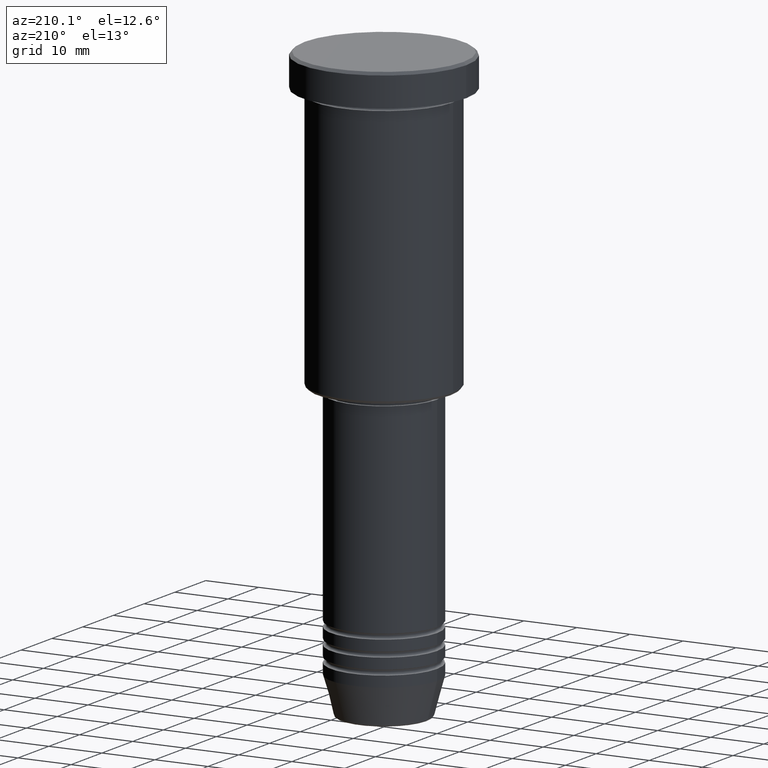
[diagram: clean part render]
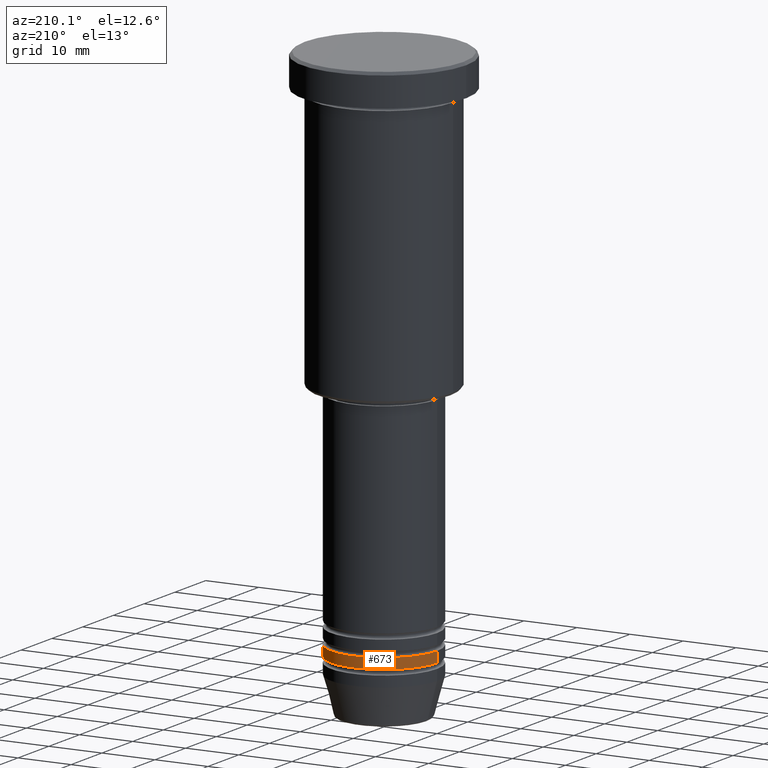
[diagram: same view with one face highlighted and labeled with its STEP entity id]
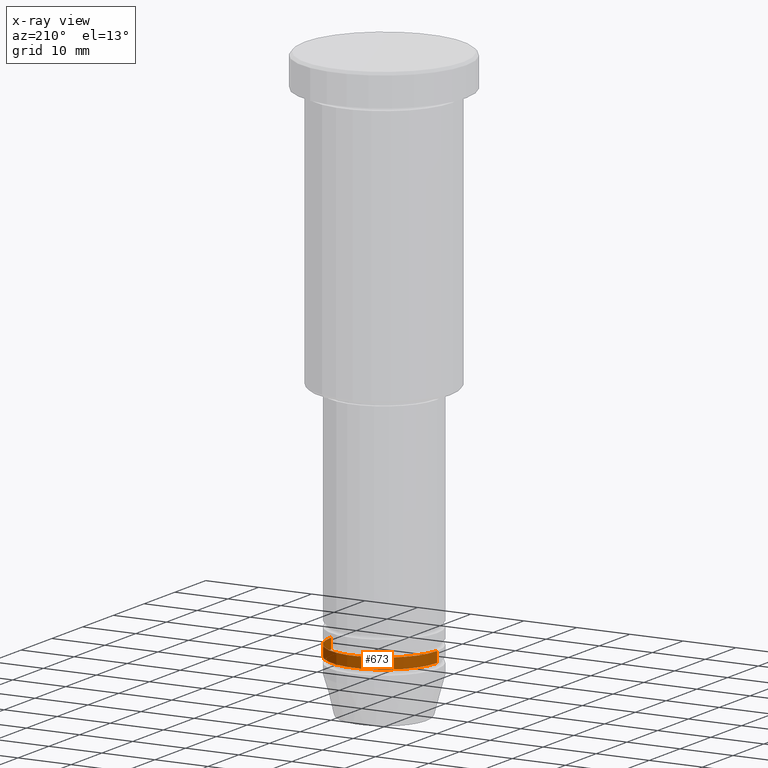
[diagram: x-ray of the same camera — body ghosted, the highlighted face saturated]
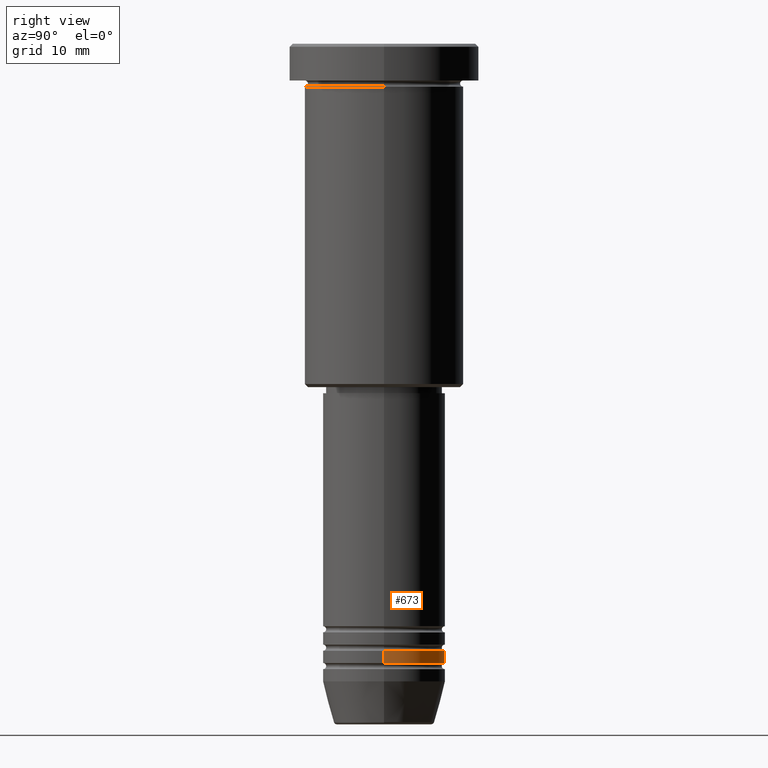
[diagram: same view with one face highlighted and labeled with its STEP entity id]
A machine part, auxiliary view. The second image highlights one B-rep face of the part: STEP entity #673.
The next image is the same camera in x-ray: the body ghosted, the highlighted face saturated — about 0% of this face is hidden behind the body in this view.
A second angle (right view) of the same face is appended — the face is thin or edge-on in the first view.
In plain terms, the highlighted cylindrical surface (partial cylindrical patch) has radius 10 mm, axis along (-0, -0, 1).
Its self-contained STEP definition (entity closure, byte-faithful):
#78 = EDGE_LOOP ( 'NONE', ( #713, #204, #620, #957 ) ) ;
#168 = CARTESIAN_POINT ( 'NONE',  ( 0.000000000000000000, 0.000000000000000000, -98.99999999999998579 ) ) ;
#182 = DIRECTION ( 'NONE',  ( -0.000000000000000000, -0.000000000000000000, 1.000000000000000000 ) ) ;
#193 = CARTESIAN_POINT ( 'NONE',  ( 10.00000000000000000, 0.000000000000000000, -98.99999999999998579 ) ) ;
#204 = ORIENTED_EDGE ( 'NONE', *, *, #1058, .T. ) ;
#207 = CIRCLE ( 'NONE', #314, 10.00000000000000000 ) ;
#236 = CARTESIAN_POINT ( 'NONE',  ( 10.00000000000000000, 0.000000000000000000, 0.000000000000000000 ) ) ;
#241 = CARTESIAN_POINT ( 'NONE',  ( 0.000000000000000000, 0.000000000000000000, 0.000000000000000000 ) ) ;
#252 = AXIS2_PLACEMENT_3D ( 'NONE', #168, #182, #288 ) ;
#288 = DIRECTION ( 'NONE',  ( 1.000000000000000000, 0.000000000000000000, 0.000000000000000000 ) ) ;
#314 = AXIS2_PLACEMENT_3D ( 'NONE', #691, #594, #962 ) ;
#322 = EDGE_CURVE ( 'NONE', #1147, #510, #207, .T. ) ;
#329 = DIRECTION ( 'NONE',  ( -0.000000000000000000, -0.000000000000000000, 1.000000000000000000 ) ) ;
#343 = FACE_OUTER_BOUND ( 'NONE', #78, .T. ) ;
#396 = VECTOR ( 'NONE', #1104, 1000.000000000000000 ) ;
#500 = VERTEX_POINT ( 'NONE', #994 ) ;
#510 = VERTEX_POINT ( 'NONE', #1177 ) ;
#517 = DIRECTION ( 'NONE',  ( -0.000000000000000000, -0.000000000000000000, 1.000000000000000000 ) ) ;
#563 = CIRCLE ( 'NONE', #252, 10.00000000000000000 ) ;
#594 = DIRECTION ( 'NONE',  ( -0.000000000000000000, -0.000000000000000000, 1.000000000000000000 ) ) ;
#612 = DIRECTION ( 'NONE',  ( 1.000000000000000000, 0.000000000000000000, 0.000000000000000000 ) ) ;
#620 = ORIENTED_EDGE ( 'NONE', *, *, #1100, .F. ) ;
#649 = CARTESIAN_POINT ( 'NONE',  ( -10.00000000000000000, 1.224646799147353256E-15, 0.000000000000000000 ) ) ;
#673 = ADVANCED_FACE ( 'NONE', ( #343 ), #695, .T. ) ;
#691 = CARTESIAN_POINT ( 'NONE',  ( 0.000000000000000000, 0.000000000000000000, -100.9999999999999716 ) ) ;
#695 = CYLINDRICAL_SURFACE ( 'NONE', #701, 10.00000000000000000 ) ;
#701 = AXIS2_PLACEMENT_3D ( 'NONE', #241, #329, #612 ) ;
#713 = ORIENTED_EDGE ( 'NONE', *, *, #322, .T. ) ;
#832 = CARTESIAN_POINT ( 'NONE',  ( 10.00000000000000000, 0.000000000000000000, -100.9999999999999716 ) ) ;
#875 = LINE ( 'NONE', #236, #1022 ) ;
#957 = ORIENTED_EDGE ( 'NONE', *, *, #987, .F. ) ;
#962 = DIRECTION ( 'NONE',  ( 1.000000000000000000, 0.000000000000000000, 0.000000000000000000 ) ) ;
#987 = EDGE_CURVE ( 'NONE', #1147, #1131, #875, .T. ) ;
#994 = CARTESIAN_POINT ( 'NONE',  ( -10.00000000000000000, 1.224646799147353256E-15, -98.99999999999998579 ) ) ;
#1022 = VECTOR ( 'NONE', #517, 1000.000000000000000 ) ;
#1058 = EDGE_CURVE ( 'NONE', #510, #500, #1094, .T. ) ;
#1094 = LINE ( 'NONE', #649, #396 ) ;
#1100 = EDGE_CURVE ( 'NONE', #1131, #500, #563, .T. ) ;
#1104 = DIRECTION ( 'NONE',  ( -0.000000000000000000, -0.000000000000000000, 1.000000000000000000 ) ) ;
#1131 = VERTEX_POINT ( 'NONE', #193 ) ;
#1147 = VERTEX_POINT ( 'NONE', #832 ) ;
#1177 = CARTESIAN_POINT ( 'NONE',  ( -10.00000000000000000, 1.224646799147353256E-15, -100.9999999999999716 ) ) ;